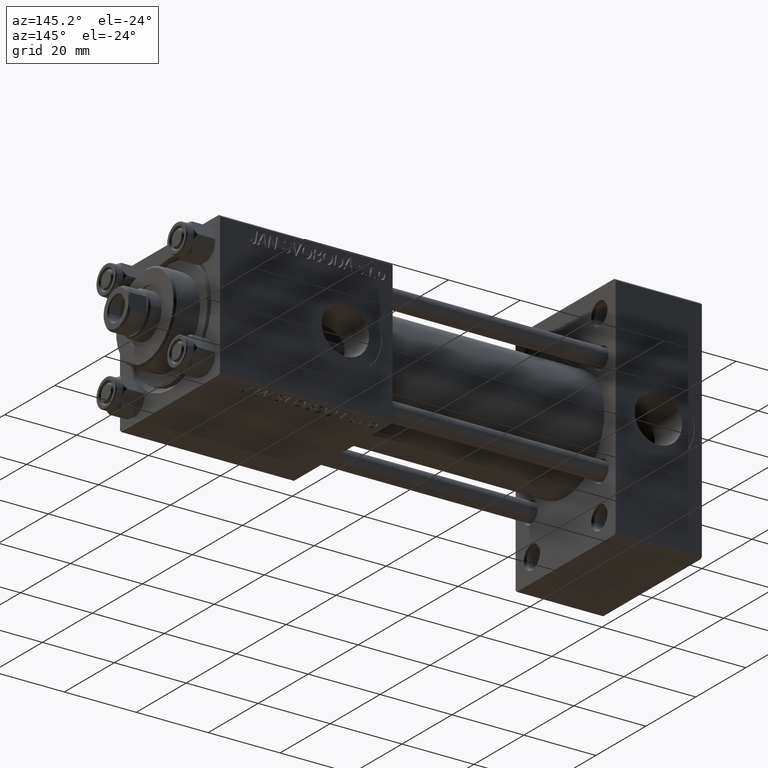
[diagram: clean part render]
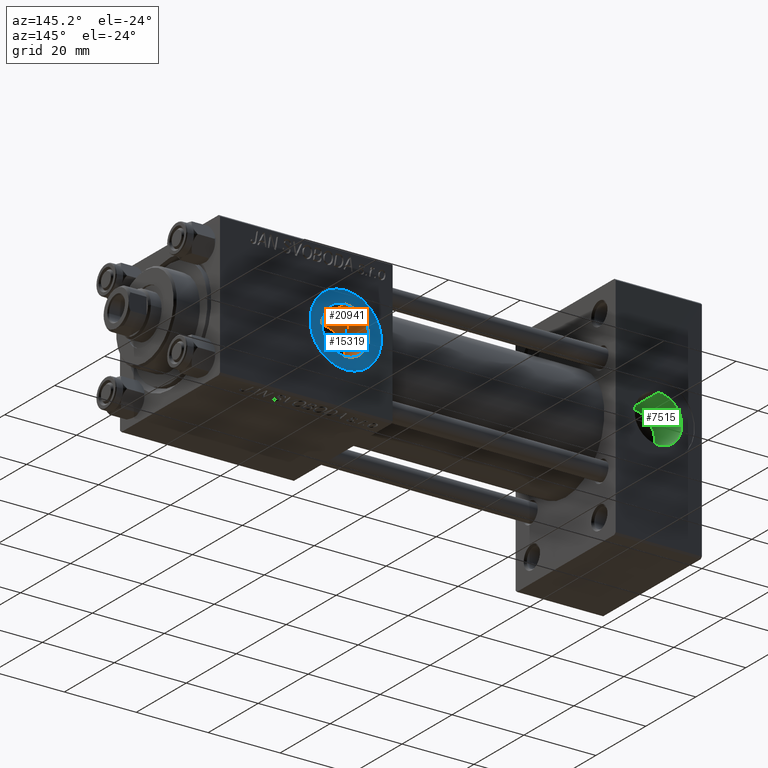
[diagram: same view with three faces highlighted in distinct colors, each labeled with its STEP entity id]
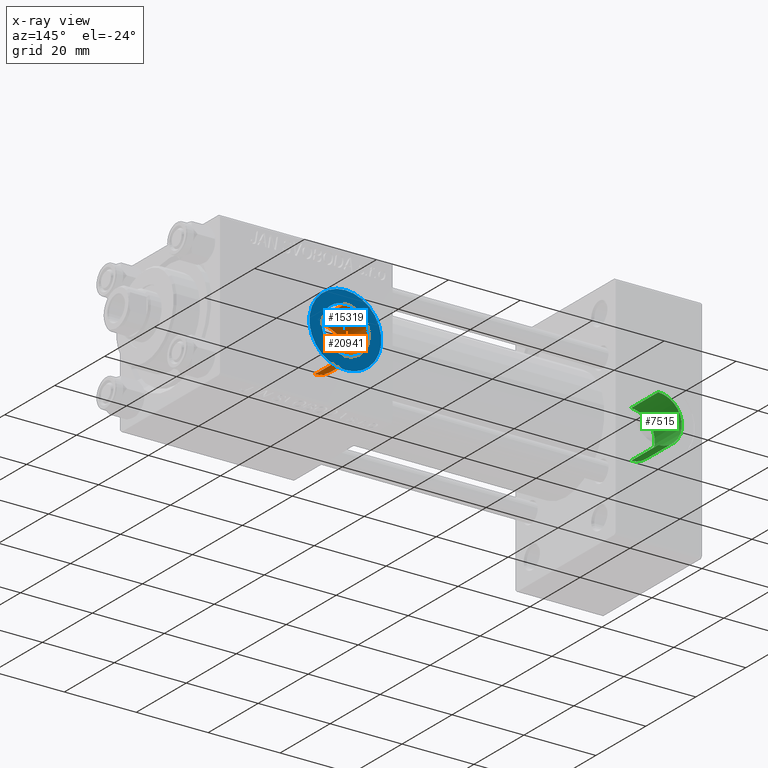
[diagram: x-ray of the same camera — body ghosted, the three highlighted faces saturated]
A machine part, auxiliary view with three faces highlighted in distinct colors.
The next image is the same camera in x-ray (body ghosted, the three faces saturated) — at least one of them is partly hidden behind the body in this view.
Their STEP definitions:

[orange] entity #20941 — the highlighted cylindrical surface (edge-blend (fillet) strip) has radius 6.58 mm, axis along (0, 1, 0).
#601 = CARTESIAN_POINT ( 'NONE',  ( 98.99999999999998579, 7.530179280734871305, -6.580000000000002736 ) ) ;
#2501 = ORIENTED_EDGE ( 'NONE', *, *, #6160, .F. ) ;
#3035 = CARTESIAN_POINT ( 'NONE',  ( 92.64486949931880133, 9.853260265445777932, -1.760971689083142389 ) ) ;
#3286 = CARTESIAN_POINT ( 'NONE',  ( 92.47471016135196464, 9.964071937118861300, 0.8754062778586857441 ) ) ;
#3786 = CARTESIAN_POINT ( 'NONE',  ( 95.67181861905731921, 8.226989970428277843, 5.691590015520640478 ) ) ;
#4227 = FACE_OUTER_BOUND ( 'NONE', #4291, .T. ) ;
#4243 = ORIENTED_EDGE ( 'NONE', *, *, #22933, .F. ) ;
#4291 = EDGE_LOOP ( 'NONE', ( #4243, #17801, #45926, #2501 ) ) ;
#4993 = CARTESIAN_POINT ( 'NONE',  ( 98.99999999999998579, 19.79999999999999716, 6.580000000000002736 ) ) ;
#6160 = EDGE_CURVE ( 'NONE', #25460, #7969, #30243, .T. ) ;
#6812 = CARTESIAN_POINT ( 'NONE',  ( 93.79387502112994923, 9.152625658485755267, -4.045983368347075171 ) ) ;
#7244 = DIRECTION ( 'NONE',  ( -0.000000000000000000, 1.000000000000000000, -0.000000000000000000 ) ) ;
#7416 = B_SPLINE_CURVE_WITH_KNOTS ( 'NONE', 3,
 ( #45436, #34585, #22924, #34075, #38111, #21934, #14377, #45196, #27181, #37869, #30279, #10358, #6812, #22176, #44959, #33837, #3035, #26742, #42147, #15121, #37369, #3286, #14861, #29783, #11092, #10596, #25987, #41394, #38368, #37621, #10840, #3786, #18650, #15365, #45694, #49471, #25746, #18152, #18895, #26492 ),
 .UNSPECIFIED., .F., .F.,
 ( 4, 2, 2, 2, 2, 2, 2, 2, 2, 2, 2, 2, 2, 2, 2, 2, 2, 2, 2, 4 ),
 ( 0.008701731815737244122, 0.01002764154747730167, 0.01069059641334733045, 0.01135355127921735749, 0.01267946101095741504, 0.01400537074269746912, 0.01533128047443752494, 0.01665719020617758075, 0.01798309993791763484, 0.01930900966965769239, 0.01997196453552772116, 0.02063491940139774994, 0.02196082913313781443, 0.02328673886487787892, 0.02461264859661794341, 0.02593855832835800790, 0.02726446806009807239, 0.02859037779183813688, 0.02925333265770816565, 0.02991628752357820137 ),
 .UNSPECIFIED. ) ;
#7969 = VERTEX_POINT ( 'NONE', #4993 ) ;
#9912 = EDGE_CURVE ( 'NONE', #35747, #7969, #28645, .T. ) ;
#10358 = CARTESIAN_POINT ( 'NONE',  ( 94.06583207920473910, 8.999241216751643790, -4.373088525023448803 ) ) ;
#10596 = CARTESIAN_POINT ( 'NONE',  ( 93.10938216452535698, 9.559587018131844971, 2.963824561550465919 ) ) ;
#10840 = CARTESIAN_POINT ( 'NONE',  ( 94.97861002298176913, 8.531011078197984432, 5.224883813250304598 ) ) ;
#11092 = CARTESIAN_POINT ( 'NONE',  ( 92.77198206539003422, 9.771107044109507811, 2.166893426414470802 ) ) ;
#14122 = AXIS2_PLACEMENT_3D ( 'NONE', #39049, #20580, #46872 ) ;
#14377 = CARTESIAN_POINT ( 'NONE',  ( 96.63397822778082968, 7.890965100433708024, -6.143572682358476200 ) ) ;
#14861 = CARTESIAN_POINT ( 'NONE',  ( 92.50781260172504972, 9.942383431864973531, 1.093810025436275923 ) ) ;
#15121 = CARTESIAN_POINT ( 'NONE',  ( 92.41947924441375051, 10.00034265660074695, 0.2080752460831388762 ) ) ;
#15365 = CARTESIAN_POINT ( 'NONE',  ( 96.82399083970055642, 7.829477968821654699, 6.224386180639466914 ) ) ;
#17043 = VECTOR ( 'NONE', #7244, 1000.000000000000000 ) ;
#17801 = ORIENTED_EDGE ( 'NONE', *, *, #40250, .T. ) ;
#18152 = CARTESIAN_POINT ( 'NONE',  ( 98.55021314680962519, 7.540374272970528757, 6.568383239022530518 ) ) ;
#18650 = CARTESIAN_POINT ( 'NONE',  ( 96.03930837247204977, 8.082784440517436053, 5.891714884320903955 ) ) ;
#18895 = CARTESIAN_POINT ( 'NONE',  ( 98.77658445718563485, 7.530179280734284220, 6.580000000000000959 ) ) ;
#20580 = DIRECTION ( 'NONE',  ( 0.000000000000000000, 1.000000000000000000, 0.000000000000000000 ) ) ;
#20941 = ADVANCED_FACE ( 'NONE', ( #4227 ), #34539, .F. ) ;
#21934 = CARTESIAN_POINT ( 'NONE',  ( 96.83515531262850118, 7.832616369988987692, -6.217476725451139608 ) ) ;
#22176 = CARTESIAN_POINT ( 'NONE',  ( 93.32060445677777238, 9.429864945222144357, -3.349355904675324958 ) ) ;
#22924 = CARTESIAN_POINT ( 'NONE',  ( 98.10965444000952118, 7.570770745331775409, -6.534274136616109452 ) ) ;
#22933 = EDGE_CURVE ( 'NONE', #39627, #25460, #7416, .T. ) ;
#23385 = DIRECTION ( 'NONE',  ( 0.000000000000000000, 0.000000000000000000, 1.000000000000000000 ) ) ;
#25460 = VERTEX_POINT ( 'NONE', #40404 ) ;
#25746 = CARTESIAN_POINT ( 'NONE',  ( 98.10726510395802791, 7.579703922831289908, 6.522958760667120437 ) ) ;
#25987 = CARTESIAN_POINT ( 'NONE',  ( 93.31448218403936323, 9.433508227117542333, 3.339653543887882936 ) ) ;
#26168 = LINE ( 'NONE', #29956, #17043 ) ;
#26234 = VECTOR ( 'NONE', #34045, 1000.000000000000000 ) ;
#26492 = CARTESIAN_POINT ( 'NONE',  ( 98.99999999999998579, 7.530179280734286884, 6.580000000000002736 ) ) ;
#26742 = CARTESIAN_POINT ( 'NONE',  ( 92.46739070597276111, 9.968652785925247173, -0.9020647327269541993 ) ) ;
#27181 = CARTESIAN_POINT ( 'NONE',  ( 95.67561368687826473, 8.225369955964051627, -5.694022486111720127 ) ) ;
#28645 = CIRCLE ( 'NONE', #14122, 6.580000000000002736 ) ;
#29783 = CARTESIAN_POINT ( 'NONE',  ( 92.63933714938144703, 9.856835002517314592, 1.741389802721240443 ) ) ;
#29956 = CARTESIAN_POINT ( 'NONE',  ( 98.99999999999998579, -18.61105048082993463, -6.580000000000002736 ) ) ;
#30243 = LINE ( 'NONE', #41617, #26234 ) ;
#30279 = CARTESIAN_POINT ( 'NONE',  ( 94.65669753948739640, 8.689338620986715611, -4.960407246870166986 ) ) ;
#31232 = DIRECTION ( 'NONE',  ( -0.000000000000000000, 1.000000000000000000, -0.000000000000000000 ) ) ;
#33837 = CARTESIAN_POINT ( 'NONE',  ( 92.77899784263269112, 9.766632874168749368, -2.186530610313683898 ) ) ;
#34045 = DIRECTION ( 'NONE',  ( -0.000000000000000000, 1.000000000000000000, -0.000000000000000000 ) ) ;
#34075 = CARTESIAN_POINT ( 'NONE',  ( 97.46400010845917450, 7.682314708625095356, -6.401981549516359671 ) ) ;
#34279 = CARTESIAN_POINT ( 'NONE',  ( 98.99999999999998579, -18.61105048082993463, 0.000000000000000000 ) ) ;
#34539 = CYLINDRICAL_SURFACE ( 'NONE', #44839, 6.580000000000002736 ) ;
#34585 = CARTESIAN_POINT ( 'NONE',  ( 98.54968518773721087, 7.530179280734286884, -6.580000000000008953 ) ) ;
#35438 = CARTESIAN_POINT ( 'NONE',  ( 98.99999999999998579, 19.79999999999999716, -6.580000000000002736 ) ) ;
#35747 = VERTEX_POINT ( 'NONE', #35438 ) ;
#37369 = CARTESIAN_POINT ( 'NONE',  ( 92.43052818302868445, 9.993061695181124193, 0.4333401385722023824 ) ) ;
#37621 = CARTESIAN_POINT ( 'NONE',  ( 94.65199552752065415, 8.691690517589774956, 4.956328465760322821 ) ) ;
#37869 = CARTESIAN_POINT ( 'NONE',  ( 94.97744829692206281, 8.531476352750466674, -5.224223791845217235 ) ) ;
#38111 = CARTESIAN_POINT ( 'NONE',  ( 97.24985912774560859, 7.728280517147018358, -6.346698061136354596 ) ) ;
#38368 = CARTESIAN_POINT ( 'NONE',  ( 94.06101818986527974, 9.001882163286797578, 4.367698871530060423 ) ) ;
#39049 = CARTESIAN_POINT ( 'NONE',  ( 98.99999999999998579, 19.79999999999999716, 0.000000000000000000 ) ) ;
#39627 = VERTEX_POINT ( 'NONE', #601 ) ;
#40250 = EDGE_CURVE ( 'NONE', #39627, #35747, #26168, .T. ) ;
#40404 = CARTESIAN_POINT ( 'NONE',  ( 98.99999999999998579, 7.530179280734286884, 6.580000000000002736 ) ) ;
#41394 = CARTESIAN_POINT ( 'NONE',  ( 93.79331962357115060, 9.152894906955811649, 4.045847017191778860 ) ) ;
#41617 = CARTESIAN_POINT ( 'NONE',  ( 98.99999999999998579, -18.61105048082993463, 6.580000000000002736 ) ) ;
#42147 = CARTESIAN_POINT ( 'NONE',  ( 92.42109887631009713, 9.999276940569057359, -0.4637401164956204136 ) ) ;
#44839 = AXIS2_PLACEMENT_3D ( 'NONE', #34279, #31232, #23385 ) ;
#44959 = CARTESIAN_POINT ( 'NONE',  ( 93.11697545012231103, 9.554905949892344097, -2.978557721002615288 ) ) ;
#45196 = CARTESIAN_POINT ( 'NONE',  ( 96.04685303640262362, 8.080059513839975338, -5.895413499623304965 ) ) ;
#45436 = CARTESIAN_POINT ( 'NONE',  ( 98.99999999999998579, 7.530179280734871305, -6.580000000000002736 ) ) ;
#45694 = CARTESIAN_POINT ( 'NONE',  ( 97.24499048461180450, 7.720408724897654729, 6.356778800091483106 ) ) ;
#45926 = ORIENTED_EDGE ( 'NONE', *, *, #9912, .T. ) ;
#46872 = DIRECTION ( 'NONE',  ( 0.000000000000000000, 0.000000000000000000, 1.000000000000000000 ) ) ;
#49471 = CARTESIAN_POINT ( 'NONE',  ( 97.88927853673737900, 7.608716402195930151, 6.489281286024413120 ) ) ;

[blue] entity #15319 — the highlighted planar face has unit normal (0, 1, 0).
#4121 = VERTEX_POINT ( 'NONE', #28692 ) ;
#4993 = CARTESIAN_POINT ( 'NONE',  ( 98.99999999999998579, 19.79999999999999716, 6.580000000000002736 ) ) ;
#5686 = CIRCLE ( 'NONE', #30649, 6.580000000000002736 ) ;
#6304 = FACE_OUTER_BOUND ( 'NONE', #17892, .T. ) ;
#6732 = DIRECTION ( 'NONE',  ( 0.000000000000000000, 1.000000000000000000, 0.000000000000000000 ) ) ;
#7969 = VERTEX_POINT ( 'NONE', #4993 ) ;
#8474 = DIRECTION ( 'NONE',  ( 0.000000000000000000, 0.000000000000000000, 1.000000000000000000 ) ) ;
#9912 = EDGE_CURVE ( 'NONE', #35747, #7969, #28645, .T. ) ;
#11011 = CARTESIAN_POINT ( 'NONE',  ( 98.99999999999998579, 19.79999999999999716, 0.000000000000000000 ) ) ;
#14122 = AXIS2_PLACEMENT_3D ( 'NONE', #39049, #20580, #46872 ) ;
#15319 = ADVANCED_FACE ( 'NONE', ( #25720, #6304 ), #48957, .T. ) ;
#17010 = AXIS2_PLACEMENT_3D ( 'NONE', #11011, #6732, #26409 ) ;
#17892 = EDGE_LOOP ( 'NONE', ( #46592, #27962 ) ) ;
#18378 = DIRECTION ( 'NONE',  ( 0.000000000000000000, 1.000000000000000000, 0.000000000000000000 ) ) ;
#20040 = AXIS2_PLACEMENT_3D ( 'NONE', #26410, #41319, #23531 ) ;
#20580 = DIRECTION ( 'NONE',  ( 0.000000000000000000, 1.000000000000000000, 0.000000000000000000 ) ) ;
#21113 = EDGE_LOOP ( 'NONE', ( #45280, #34924 ) ) ;
#23531 = DIRECTION ( 'NONE',  ( 0.000000000000000000, 0.000000000000000000, 1.000000000000000000 ) ) ;
#25720 = FACE_BOUND ( 'NONE', #21113, .T. ) ;
#26409 = DIRECTION ( 'NONE',  ( 0.000000000000000000, 0.000000000000000000, 1.000000000000000000 ) ) ;
#26410 = CARTESIAN_POINT ( 'NONE',  ( 98.99999999999998579, 19.79999999999999716, 0.000000000000000000 ) ) ;
#27962 = ORIENTED_EDGE ( 'NONE', *, *, #28431, .T. ) ;
#28431 = EDGE_CURVE ( 'NONE', #4121, #34813, #30542, .T. ) ;
#28645 = CIRCLE ( 'NONE', #14122, 6.580000000000002736 ) ;
#28692 = CARTESIAN_POINT ( 'NONE',  ( 98.99999999999998579, 19.79999999999999716, -9.999999999999994671 ) ) ;
#30542 = CIRCLE ( 'NONE', #20040, 9.999999999999994671 ) ;
#30649 = AXIS2_PLACEMENT_3D ( 'NONE', #34504, #43056, #8474 ) ;
#32520 = CARTESIAN_POINT ( 'NONE',  ( 98.99999999999998579, 19.79999999999999716, 9.999999999999994671 ) ) ;
#33807 = DIRECTION ( 'NONE',  ( 0.000000000000000000, -0.000000000000000000, 1.000000000000000000 ) ) ;
#34504 = CARTESIAN_POINT ( 'NONE',  ( 98.99999999999998579, 19.79999999999999716, 0.000000000000000000 ) ) ;
#34813 = VERTEX_POINT ( 'NONE', #32520 ) ;
#34924 = ORIENTED_EDGE ( 'NONE', *, *, #9912, .F. ) ;
#35438 = CARTESIAN_POINT ( 'NONE',  ( 98.99999999999998579, 19.79999999999999716, -6.580000000000002736 ) ) ;
#35747 = VERTEX_POINT ( 'NONE', #35438 ) ;
#36375 = EDGE_CURVE ( 'NONE', #7969, #35747, #5686, .T. ) ;
#38374 = EDGE_CURVE ( 'NONE', #34813, #4121, #48499, .T. ) ;
#39049 = CARTESIAN_POINT ( 'NONE',  ( 98.99999999999998579, 19.79999999999999716, 0.000000000000000000 ) ) ;
#41319 = DIRECTION ( 'NONE',  ( 0.000000000000000000, 1.000000000000000000, 0.000000000000000000 ) ) ;
#43056 = DIRECTION ( 'NONE',  ( 0.000000000000000000, 1.000000000000000000, 0.000000000000000000 ) ) ;
#44670 = CARTESIAN_POINT ( 'NONE',  ( 98.99999999999998579, 19.79999999999999716, 0.000000000000000000 ) ) ;
#44732 = AXIS2_PLACEMENT_3D ( 'NONE', #44670, #18378, #33807 ) ;
#45280 = ORIENTED_EDGE ( 'NONE', *, *, #36375, .F. ) ;
#46592 = ORIENTED_EDGE ( 'NONE', *, *, #38374, .T. ) ;
#46872 = DIRECTION ( 'NONE',  ( 0.000000000000000000, 0.000000000000000000, 1.000000000000000000 ) ) ;
#48499 = CIRCLE ( 'NONE', #17010, 9.999999999999994671 ) ;
#48957 = PLANE ( 'NONE',  #44732 ) ;

[green] entity #7515 — the highlighted cylindrical surface (edge-blend (fillet) strip) has radius 6.58 mm, axis along (0, 1, 0).
#2183 = VECTOR ( 'NONE', #18540, 1000.000000000000000 ) ;
#2941 = CIRCLE ( 'NONE', #12585, 6.579999999999998295 ) ;
#4760 = CIRCLE ( 'NONE', #39427, 6.579999999999998295 ) ;
#6427 = DIRECTION ( 'NONE',  ( -0.000000000000000000, 1.000000000000000000, -0.000000000000000000 ) ) ;
#6764 = CARTESIAN_POINT ( 'NONE',  ( 12.00000000000000000, 19.79999999999999716, 0.000000000000000000 ) ) ;
#6940 = CARTESIAN_POINT ( 'NONE',  ( 12.00000000000000000, 19.79999999999999716, 6.579999999999998295 ) ) ;
#7515 = ADVANCED_FACE ( 'NONE', ( #41488 ), #49074, .F. ) ;
#12585 = AXIS2_PLACEMENT_3D ( 'NONE', #6764, #30225, #14082 ) ;
#12661 = CARTESIAN_POINT ( 'NONE',  ( 12.00000000000000000, 8.999999999999998224, -6.579999999999998295 ) ) ;
#13368 = AXIS2_PLACEMENT_3D ( 'NONE', #30122, #6427, #14474 ) ;
#14082 = DIRECTION ( 'NONE',  ( 0.000000000000000000, 0.000000000000000000, 1.000000000000000000 ) ) ;
#14474 = DIRECTION ( 'NONE',  ( 0.000000000000000000, 0.000000000000000000, 1.000000000000000000 ) ) ;
#15097 = DIRECTION ( 'NONE',  ( 0.000000000000000000, 0.000000000000000000, 1.000000000000000000 ) ) ;
#15820 = CARTESIAN_POINT ( 'NONE',  ( 12.00000000000000000, 8.939999999999994174, 6.579999999999998295 ) ) ;
#18330 = VERTEX_POINT ( 'NONE', #22732 ) ;
#18540 = DIRECTION ( 'NONE',  ( -0.000000000000000000, 1.000000000000000000, -0.000000000000000000 ) ) ;
#19268 = EDGE_LOOP ( 'NONE', ( #24416, #39246, #27835, #46786 ) ) ;
#20930 = VERTEX_POINT ( 'NONE', #15820 ) ;
#22376 = VERTEX_POINT ( 'NONE', #6940 ) ;
#22732 = CARTESIAN_POINT ( 'NONE',  ( 12.00000000000000000, 8.939999999999994174, -6.579999999999998295 ) ) ;
#24012 = LINE ( 'NONE', #12661, #2183 ) ;
#24416 = ORIENTED_EDGE ( 'NONE', *, *, #28159, .T. ) ;
#27199 = EDGE_CURVE ( 'NONE', #20930, #22376, #32057, .T. ) ;
#27835 = ORIENTED_EDGE ( 'NONE', *, *, #47686, .T. ) ;
#28159 = EDGE_CURVE ( 'NONE', #20930, #18330, #4760, .T. ) ;
#29759 = CARTESIAN_POINT ( 'NONE',  ( 12.00000000000000000, 8.939999999999994174, 0.000000000000000000 ) ) ;
#30122 = CARTESIAN_POINT ( 'NONE',  ( 12.00000000000000000, 8.999999999999998224, 0.000000000000000000 ) ) ;
#30225 = DIRECTION ( 'NONE',  ( 0.000000000000000000, 1.000000000000000000, 0.000000000000000000 ) ) ;
#32057 = LINE ( 'NONE', #42423, #49836 ) ;
#34040 = VERTEX_POINT ( 'NONE', #36682 ) ;
#34562 = DIRECTION ( 'NONE',  ( -0.000000000000000000, -1.000000000000000000, -0.000000000000000000 ) ) ;
#36682 = CARTESIAN_POINT ( 'NONE',  ( 12.00000000000000000, 19.79999999999999716, -6.579999999999998295 ) ) ;
#39246 = ORIENTED_EDGE ( 'NONE', *, *, #49183, .T. ) ;
#39427 = AXIS2_PLACEMENT_3D ( 'NONE', #29759, #34562, #15097 ) ;
#41488 = FACE_OUTER_BOUND ( 'NONE', #19268, .T. ) ;
#42423 = CARTESIAN_POINT ( 'NONE',  ( 12.00000000000000000, 8.999999999999998224, 6.579999999999998295 ) ) ;
#46786 = ORIENTED_EDGE ( 'NONE', *, *, #27199, .F. ) ;
#47686 = EDGE_CURVE ( 'NONE', #34040, #22376, #2941, .T. ) ;
#48150 = DIRECTION ( 'NONE',  ( -0.000000000000000000, 1.000000000000000000, -0.000000000000000000 ) ) ;
#49074 = CYLINDRICAL_SURFACE ( 'NONE', #13368, 6.579999999999998295 ) ;
#49183 = EDGE_CURVE ( 'NONE', #18330, #34040, #24012, .T. ) ;
#49836 = VECTOR ( 'NONE', #48150, 1000.000000000000000 ) ;